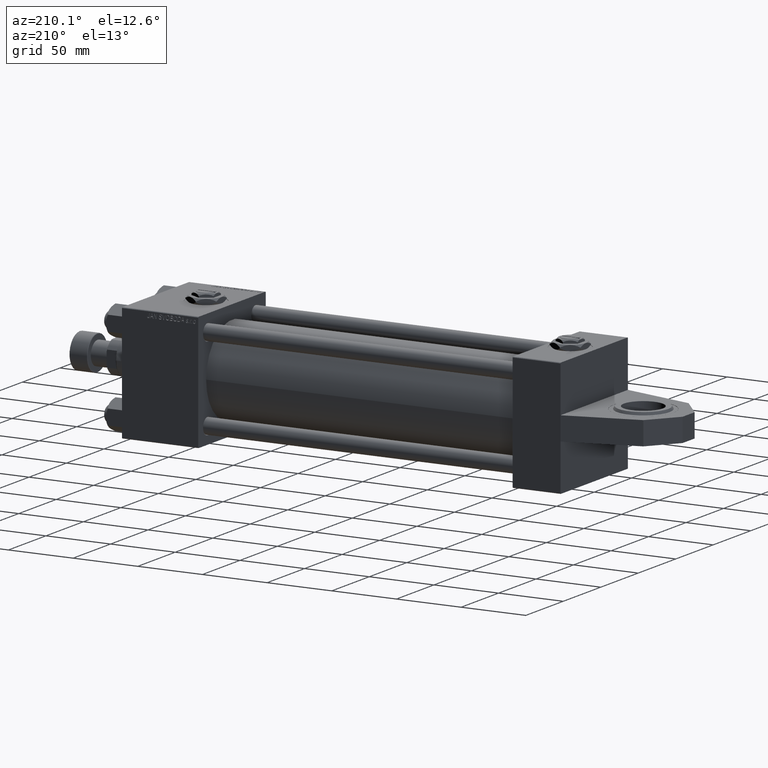
[diagram: clean part render]
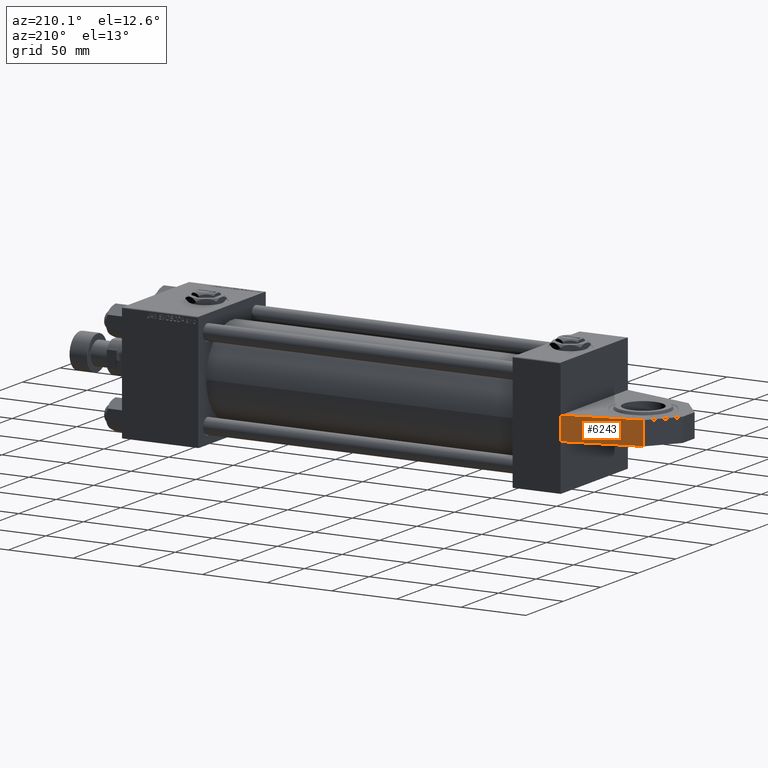
[diagram: same view with one face highlighted and labeled with its STEP entity id]
A machine part, auxiliary view. The second image highlights one B-rep face of the part: STEP entity #6243.
In plain terms, the highlighted planar face has unit normal (-0.2588, 0.9659, 0).
Its self-contained STEP definition (entity closure, byte-faithful):
#492 = DIRECTION ( 'NONE',  ( 0.000000000000000000, 1.000000000000000000, 0.000000000000000000 ) ) ;
#1174 = VERTEX_POINT ( 'NONE', #49224 ) ;
#2508 = VECTOR ( 'NONE', #492, 1000.000000000000000 ) ;
#2571 = VECTOR ( 'NONE', #4329, 1000.000000000000227 ) ;
#3332 = VECTOR ( 'NONE', #43871, 1000.000000000000000 ) ;
#4329 = DIRECTION ( 'NONE',  ( -0.9659258262890670910, -0.000000000000000000, 0.2588190451025247918 ) ) ;
#6243 = ADVANCED_FACE ( 'NONE', ( #36294 ), #33076, .T. ) ;
#13589 = ORIENTED_EDGE ( 'NONE', *, *, #19796, .T. ) ;
#13854 = VERTEX_POINT ( 'NONE', #23183 ) ;
#15697 = EDGE_CURVE ( 'NONE', #22979, #27283, #24655, .T. ) ;
#16218 = LINE ( 'NONE', #52455, #2508 ) ;
#16295 = DIRECTION ( 'NONE',  ( -0.2588190451025247918, 0.000000000000000000, -0.9659258262890672020 ) ) ;
#19680 = VECTOR ( 'NONE', #52660, 1000.000000000000227 ) ;
#19796 = EDGE_CURVE ( 'NONE', #13854, #1174, #16218, .T. ) ;
#20033 = CARTESIAN_POINT ( 'NONE',  ( 0.000000000000000000, 9.000000000000000000, -45.00000000000000000 ) ) ;
#20390 = CARTESIAN_POINT ( 'NONE',  ( 0.000000000000000000, -9.000000000000000000, -45.00000000000000000 ) ) ;
#22979 = VERTEX_POINT ( 'NONE', #44238 ) ;
#23183 = CARTESIAN_POINT ( 'NONE',  ( -55.50000000000000711, -9.000000000000000000, -30.12881982007243309 ) ) ;
#24109 = EDGE_CURVE ( 'NONE', #27283, #1174, #48936, .T. ) ;
#24286 = CARTESIAN_POINT ( 'NONE',  ( -55.50000000000000711, -9.000000000000000000, -30.12881982007243309 ) ) ;
#24655 = LINE ( 'NONE', #20390, #3332 ) ;
#24846 = LINE ( 'NONE', #41118, #2571 ) ;
#27283 = VERTEX_POINT ( 'NONE', #20033 ) ;
#29360 = AXIS2_PLACEMENT_3D ( 'NONE', #24286, #16295, #32550 ) ;
#29947 = EDGE_LOOP ( 'NONE', ( #36293, #35487, #41530, #13589 ) ) ;
#31897 = CARTESIAN_POINT ( 'NONE',  ( -55.50000000000000711, 9.000000000000000000, -30.12881982007243309 ) ) ;
#32550 = DIRECTION ( 'NONE',  ( -0.9659258262890672020, 0.000000000000000000, 0.2588190451025247918 ) ) ;
#33076 = PLANE ( 'NONE',  #29360 ) ;
#35487 = ORIENTED_EDGE ( 'NONE', *, *, #15697, .F. ) ;
#36293 = ORIENTED_EDGE ( 'NONE', *, *, #24109, .F. ) ;
#36294 = FACE_OUTER_BOUND ( 'NONE', #29947, .T. ) ;
#36843 = EDGE_CURVE ( 'NONE', #22979, #13854, #24846, .T. ) ;
#41118 = CARTESIAN_POINT ( 'NONE',  ( -55.50000000000000711, -9.000000000000000000, -30.12881982007243309 ) ) ;
#41530 = ORIENTED_EDGE ( 'NONE', *, *, #36843, .T. ) ;
#43871 = DIRECTION ( 'NONE',  ( 0.000000000000000000, 1.000000000000000000, 0.000000000000000000 ) ) ;
#44238 = CARTESIAN_POINT ( 'NONE',  ( 0.000000000000000000, -8.999999999999987566, -44.99999999999999289 ) ) ;
#48936 = LINE ( 'NONE', #31897, #19680 ) ;
#49224 = CARTESIAN_POINT ( 'NONE',  ( -55.50000000000000711, 9.000000000000000000, -30.12881982007243309 ) ) ;
#52455 = CARTESIAN_POINT ( 'NONE',  ( -55.50000000000000711, -9.000000000000000000, -30.12881982007243309 ) ) ;
#52660 = DIRECTION ( 'NONE',  ( -0.9659258262890670910, -0.000000000000000000, 0.2588190451025247918 ) ) ;